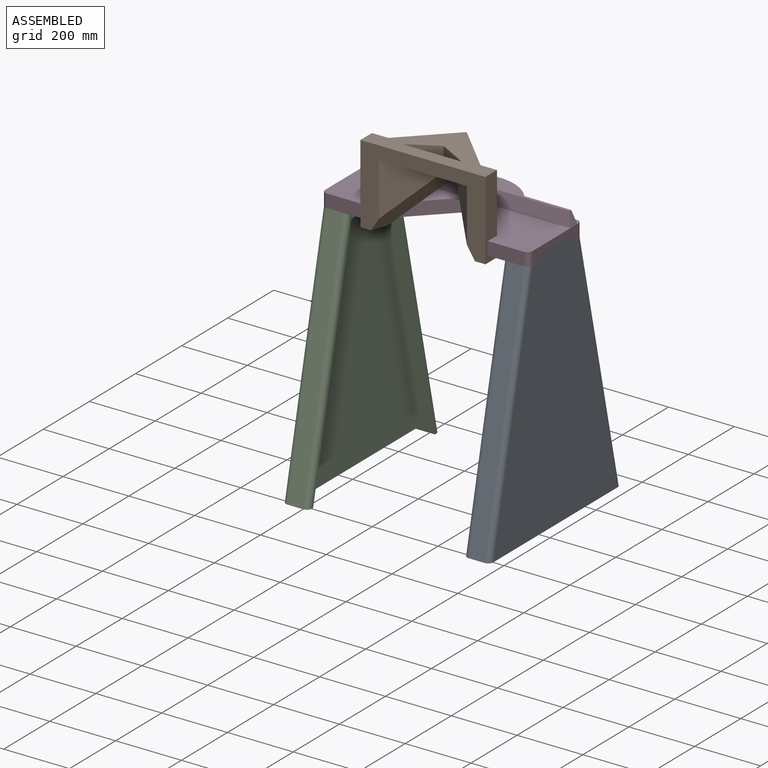
[diagram: assembled view]
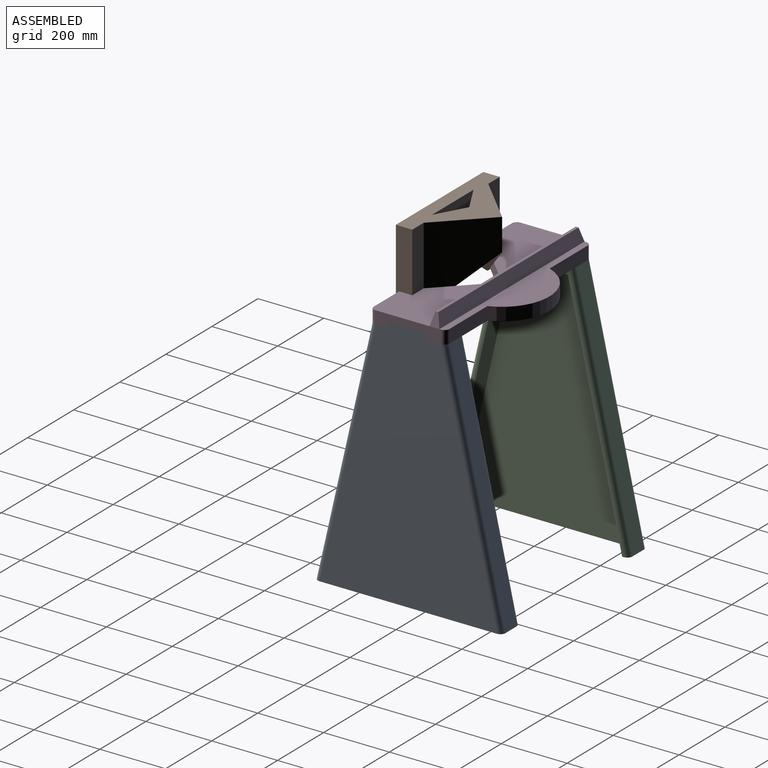
[diagram: assembled view, second angle]
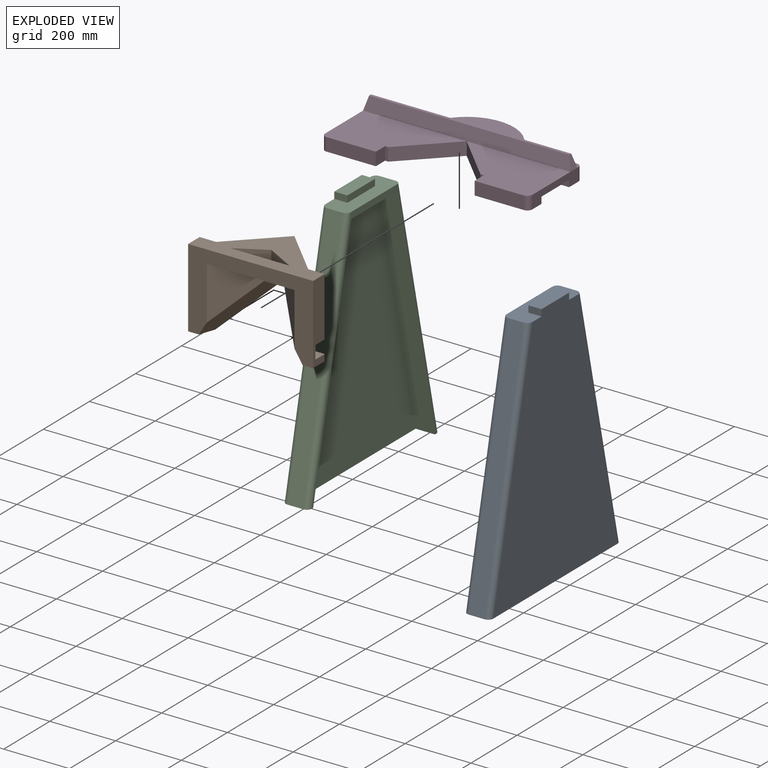
[diagram: exploded view]
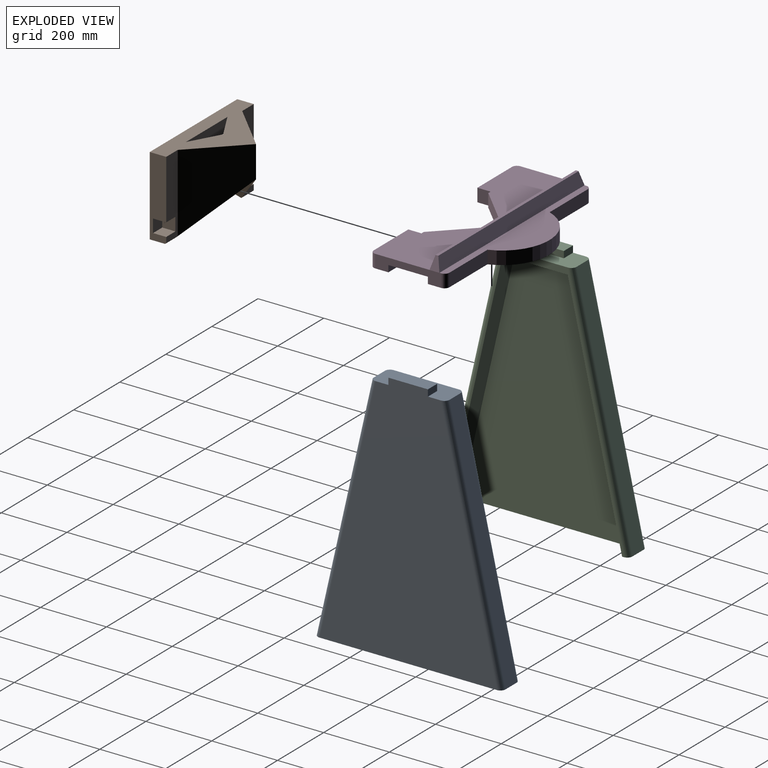
[diagram: exploded view, second angle]
ASSEMBLY  parts=4 mates=3
PART A: 18 faces, bbox 79x570x773.3 mm
  f0: plane 570x79mm, normal (0,0,-1), area 13621.8mm2, adj f1,f2,f4,f5,f6,f7,f8,f9
  f1: plane 750x539.24mm, normal (-1,0,0), area 11560.6mm2, adj f0,f3,f6,f7,f10,f11,f12
  f2: plane 750x170mm, normal (0,0.98,0.22), area 37682.2mm2, adj f0,f3,f6,f8
  f3: plane 230x79mm, normal (0,0,1), area 13172mm2, adj f1,f2,f4,f5,f6,f7,f8,f9
  f4: plane 750x170mm, normal (0,-0.98,0.22), area 37682.2mm2, adj f0,f3,f7,f9
  f5: plane 770x539.24mm, normal (1,0,0), area 279329.2mm2, adj f0,f3,f8,f9,f14,f15,f16
  f6: cylinder r=15mm len=756.63mm, axis (0,-0.22,0.98), area 18119.7mm2, adj f0,f1,f2,f3
  f7: cylinder r=15mm len=756.63mm, axis (0,-0.22,-0.98), area 18119.7mm2, adj f0,f1,f3,f4
  f8: cylinder r=15mm len=756.63mm, axis (0,0.22,-0.98), area 18119.7mm2, adj f0,f2,f3,f5
  f9: cylinder r=15mm len=756.63mm, axis (0,0.22,0.98), area 18119.7mm2, adj f0,f3,f4,f5
  f10: plane 730x165.47mm, normal (0,-0.98,-0.22), area 44162.6mm2, adj f0,f1,f11,f13
  f11: plane 198.05x59mm, normal (0,0,-1), area 11685.1mm2, adj f1,f10,f12,f13
  f12: plane 730x165.47mm, normal (0,0.98,-0.22), area 44162.6mm2, adj f0,f1,f11,f13
  f13: plane 730x528.99mm, normal (-1,0,0), area 265368.6mm2, adj f0,f10,f11,f12
  f14: plane 40x20mm, normal (0,-1,0), area 800mm2, adj f3,f5,f16,f17
  f15: plane 40x20mm, normal (0,1,0), area 800mm2, adj f3,f5,f16,f17
  f16: plane 120x40mm, normal (0,0,1), area 4800mm2, adj f5,f14,f15,f17
  f17: plane 120x20mm, normal (-1,0,0), area 2400mm2, adj f3,f14,f15,f16
PART B: 27 faces, bbox 380x190x240 mm
  f0: plane 236.8x50mm, normal (0,-1,0), area 10240.2mm2, adj f1,f5,f9,f13,f19,f21,f22
  f1: plane 380x190mm, normal (0,0,1), area 34100mm2, adj f0,f5,f6,f7,f8,f9,f12,f14
  f2: plane 266.86x133.43mm, normal (0,0,-1), area 13304mm2, adj f10,f11,f12,f14,f15,f16
  f3: plane 49.48x46.8mm, normal (0,0,-1), area 1909.2mm2, adj f9,f12,f13,f17
  f4: plane 49.48x46.8mm, normal (0,0,-1), area 1909.2mm2, adj f8,f12,f13,f18
  f5: plane 236.8x140mm, normal (-0.71,-0.71,0), area 33025.4mm2, adj f0,f1,f6,f13
  f6: plane 236.8x140mm, normal (0.71,-0.71,0), area 33025.4mm2, adj f1,f5,f7,f13
  f7: plane 236.8x50mm, normal (0,-1,0), area 10240.2mm2, adj f1,f6,f8,f13,f23,f24,f26
  f8: plane 240x50mm, normal (1,0,0), area 10394.9mm2, adj f1,f4,f7,f12,f13,f23,f24,f25
  f9: plane 240x50mm, normal (-1,0,0), area 10394.9mm2, adj f0,f1,f3,f12,f13,f19,f20,f21
  f10: plane 161.07x133.43mm, normal (-0.71,0.71,0), area 17804.9mm2, adj f2,f11,f12,f18
  f11: plane 161.07x133.43mm, normal (0.71,0.71,0), area 17804.9mm2, adj f2,f10,f12,f17
  f12: plane 380x240mm, normal (0,1,0), area 36874.9mm2, adj f1,f2,f3,f4,f8,f9,f10,f11
  f13: plane 380x143.2mm, normal (0,-0.71,-0.71), area 1512.8mm2, adj f0,f3,f4,f5,f6,f7,f8,f9
  f14: plane 180x40mm, normal (0,-1,0), area 7200mm2, adj f1,f2,f15,f16
  f15: plane 90x50mm, normal (0.49,0.87,0), area 4118.3mm2, adj f1,f2,f14,f16
  f16: plane 90x50mm, normal (-0.49,0.87,0), area 4118.3mm2, adj f1,f2,f14,f15
  f17: plane 187.32x172.36mm, normal (0.81,0.3,-0.51), area 15667.9mm2, adj f3,f11,f12,f13,f18
  f18: plane 187.32x172.36mm, normal (-0.81,0.3,-0.51), area 15667.9mm2, adj f4,f10,f12,f13,f17
  f19: plane 40x40mm, normal (0,0,-1), area 1600mm2, adj f0,f9,f20,f22
  f20: plane 40x40mm, normal (0,-1,0), area 1600mm2, adj f9,f19,f21,f22
  f21: plane 40x40mm, normal (0,0,1), area 1600mm2, adj f0,f9,f20,f22
  f22: plane 40x40mm, normal (-1,0,0), area 1600mm2, adj f0,f19,f20,f21
  f23: plane 40x40mm, normal (0,0,-1), area 1600mm2, adj f7,f8,f25,f26
  f24: plane 40x40mm, normal (0,0,1), area 1600mm2, adj f7,f8,f25,f26
  f25: plane 40x40mm, normal (0,-1,0), area 1600mm2, adj f8,f23,f24,f26
  f26: plane 40x40mm, normal (1,0,0), area 1600mm2, adj f7,f23,f24,f25
PART C: same geometry as A
PART D: 34 faces, bbox 630x324x80 mm
  f0: plane 40x10mm, normal (0,1,0), area 400mm2, adj f4,f8,f14,f33
  f1: plane 40x10mm, normal (0,1,0), area 400mm2, adj f5,f7,f14,f32
  f2: plane 200x40mm, normal (-1,0,0), area 5600mm2, adj f4,f13,f14,f16,f21,f22,f28,f29
  f3: plane 200x40mm, normal (1,0,0), area 5600mm2, adj f5,f13,f14,f18,f20,f23,f24,f25
  f4: plane 315x180mm, normal (0,0,1), area 40851.7mm2, adj f0,f2,f8,f9,f15,f21,f33
  f5: plane 315x180mm, normal (0,0,1), area 40851.7mm2, adj f1,f3,f6,f7,f15,f20,f32
  f6: plane 150x40mm, normal (0,1,0), area 6000mm2, adj f5,f14,f20,f32
  f7: plane 140x140mm, normal (-0.71,0.71,0), area 7919.6mm2, adj f1,f5,f8,f14
  f8: plane 140x140mm, normal (0.71,0.71,0), area 7919.6mm2, adj f0,f4,f7,f14
  f9: plane 150x40mm, normal (0,1,0), area 6000mm2, adj f4,f14,f21,f33
  f10: plane 165x40mm, normal (0,-1,0), area 6600mm2, adj f11,f13,f14,f22
  f11: cylinder r=143.96mm len=270mm, axis (0,0,-1), area 14005.6mm2, adj f10,f12,f13,f14
  f12: plane 165x40mm, normal (0,-1,0), area 6600mm2, adj f11,f13,f14,f23
  f13: plane 630x113.96mm, normal (0,0,1), area 30956.9mm2, adj f2,f3,f10,f11,f12,f17,f22,f23
  f14: plane 630x323.96mm, normal (0,0,-1), area 121960.3mm2, adj f0,f1,f2,f3,f6,f7,f8,f9
  f15: plane 630x40mm, normal (0,0.97,0.26), area 25645.1mm2, adj f4,f5,f16,f18,f19
  f16: plane 40x30mm, normal (-0.97,0,0.26), area 798.5mm2, adj f2,f15,f17,f19
  f17: plane 630x40mm, normal (0,-0.97,0.26), area 25645.1mm2, adj f13,f16,f18,f19
  f18: plane 40x30mm, normal (0.97,0,0.26), area 798.5mm2, adj f3,f15,f17,f19
  f19: plane 608.56x8.56mm, normal (0,0,1), area 5211.8mm2, adj f15,f16,f17,f18
  f20: cylinder r=15mm len=40mm, axis (0,0,1), area 942.5mm2, adj f3,f5,f6,f14
  f21: cylinder r=15mm len=40mm, axis (0,0,-1), area 942.5mm2, adj f2,f4,f9,f14
  f22: cylinder r=15mm len=40mm, axis (0,0,1), area 942.5mm2, adj f2,f10,f13,f14
  f23: cylinder r=15mm len=40mm, axis (0,0,-1), area 942.5mm2, adj f3,f12,f13,f14
  f24: plane 40x20mm, normal (0,1,0), area 800mm2, adj f3,f14,f26,f27
  f25: plane 40x20mm, normal (0,-1,0), area 800mm2, adj f3,f14,f26,f27
  f26: plane 120x40mm, normal (0,0,-1), area 4800mm2, adj f3,f24,f25,f27
  f27: plane 120x20mm, normal (1,0,0), area 2400mm2, adj f14,f24,f25,f26
  f28: plane 40x20mm, normal (0,1,0), area 800mm2, adj f2,f14,f29,f31
  f29: plane 120x40mm, normal (0,0,-1), area 4800mm2, adj f2,f28,f30,f31
  f30: plane 40x20mm, normal (0,-1,0), area 800mm2, adj f2,f14,f29,f31
  f31: plane 120x20mm, normal (-1,0,0), area 2400mm2, adj f14,f28,f29,f30
  f32: plane 40x40mm, normal (-1,0,0), area 1600mm2, adj f1,f5,f6,f14
  f33: plane 40x40mm, normal (1,0,0), area 1600mm2, adj f0,f4,f9,f14
PLACE A t=(-1057.96,-1835.93,-528.65)mm
PLACE B rot(axis=(0,0,1),180deg) t=(-1608.96,-1835.93,-528.65)mm
PLACE C rot(axis=(0,0,1),180deg) t=(-1608.96,-1835.93,-528.65)mm
PLACE D rot(axis=(0,0,1),180deg) t=(-1608.96,-1835.93,-528.65)mm
MATE fastened D.f29 <-> A.f16  axis (0,0,-1) through (-1058.46,-1895.93,241.35)mm
MATE fastened D.f26 <-> C.f16  axis (0,0,-1) through (-1608.46,-1895.93,241.35)mm
MATE fastened D.f6 <-> B.f25  axis (0,-1,0) through (-1483.46,-1950.93,261.35)mm
